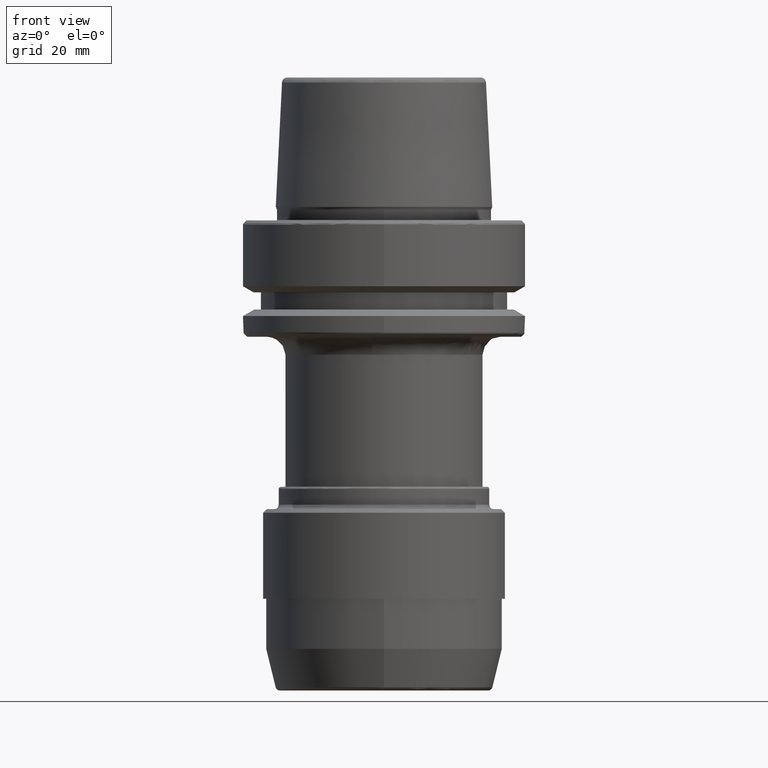
[diagram: clean part render]
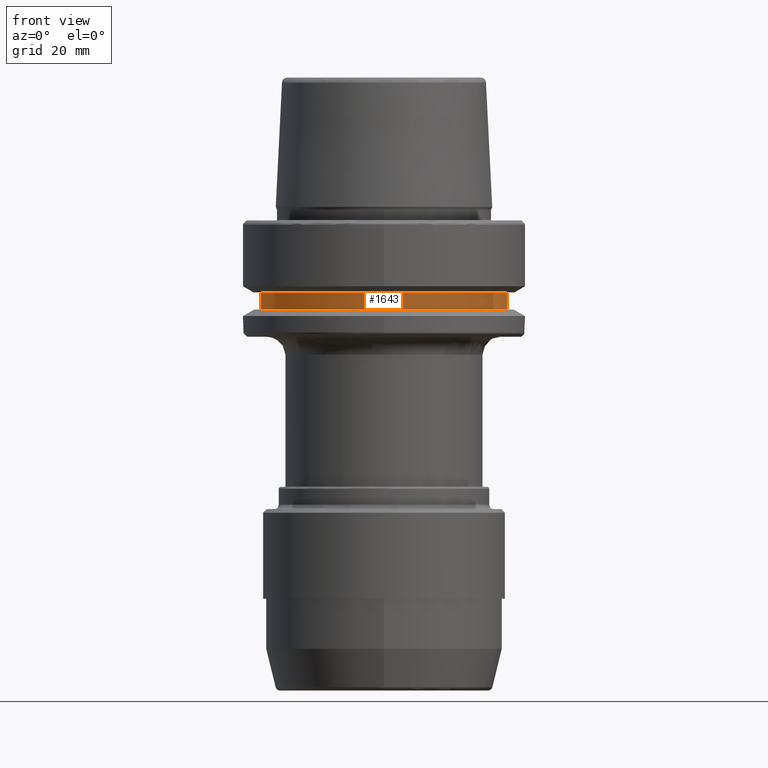
[diagram: same view with one face highlighted and labeled with its STEP entity id]
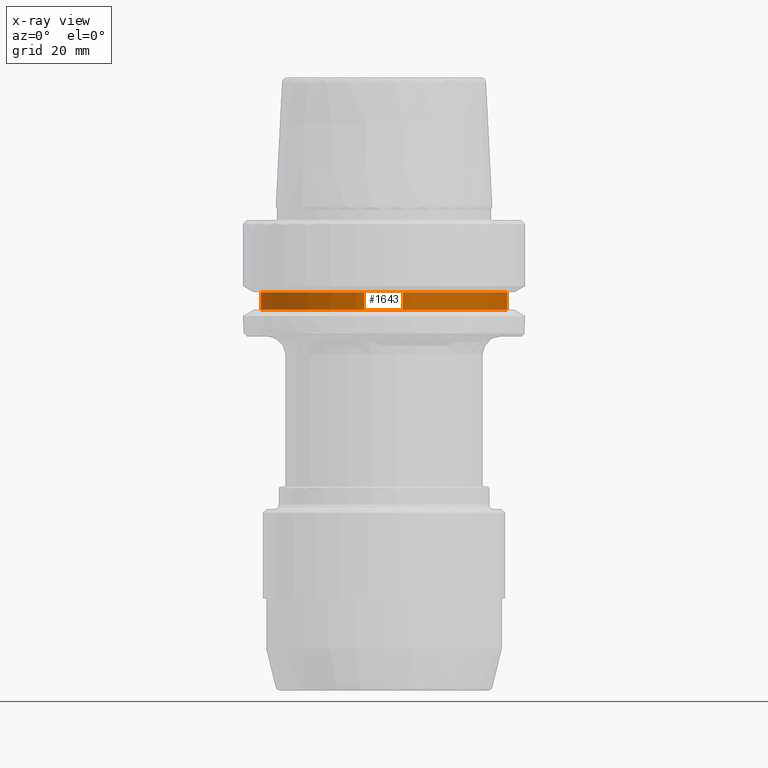
[diagram: x-ray of the same camera — body ghosted, the highlighted face saturated]
A machine part, front view. The second image highlights one B-rep face of the part: STEP entity #1643.
The next image is the same camera in x-ray: the body ghosted, the highlighted face saturated — about 0% of this face is hidden behind the body in this view.
In plain terms, the highlighted cylindrical surface (partial cylindrical patch) has radius 27.5 mm, axis along (0, -0, 1).
Its self-contained STEP definition (entity closure, byte-faithful):
#33 = AXIS2_PLACEMENT_3D ( 'NONE', #1154, #3148, #1430 ) ;
#96 = ORIENTED_EDGE ( 'NONE', *, *, #1653, .F. ) ;
#106 = FACE_OUTER_BOUND ( 'NONE', #3512, .T. ) ;
#128 = DIRECTION ( 'NONE',  ( 1.000000000000000000, 0.0000000000000000000, 0.0000000000000000000 ) ) ;
#162 = DIRECTION ( 'NONE',  ( 1.000000000000000000, 0.0000000000000000000, 0.0000000000000000000 ) ) ;
#299 = VERTEX_POINT ( 'NONE', #1321 ) ;
#314 = DIRECTION ( 'NONE',  ( 0.0000000000000000000, -0.0000000000000000000, 1.000000000000000000 ) ) ;
#364 = CIRCLE ( 'NONE', #925, 27.50000000000000000 ) ;
#451 = DIRECTION ( 'NONE',  ( 0.0000000000000000000, -0.0000000000000000000, 1.000000000000000000 ) ) ;
#768 = CYLINDRICAL_SURFACE ( 'NONE', #1128, 27.50000000000000000 ) ;
#925 = AXIS2_PLACEMENT_3D ( 'NONE', #3566, #1829, #128 ) ;
#982 = CARTESIAN_POINT ( 'NONE',  ( 27.50000000000000000, 0.0000000000000000000, -16.10000000000000100 ) ) ;
#1021 = CARTESIAN_POINT ( 'NONE',  ( 0.0000000000000000000, 0.0000000000000000000, -19.89999999999999900 ) ) ;
#1128 = AXIS2_PLACEMENT_3D ( 'NONE', #1021, #2703, #162 ) ;
#1154 = CARTESIAN_POINT ( 'NONE',  ( 0.0000000000000000000, 0.0000000000000000000, -19.90000000000000200 ) ) ;
#1261 = EDGE_CURVE ( 'NONE', #3592, #1591, #1564, .T. ) ;
#1277 = VERTEX_POINT ( 'NONE', #2290 ) ;
#1321 = CARTESIAN_POINT ( 'NONE',  ( -27.50000000000000000, 3.367778697655221300E-015, -19.90000000000000200 ) ) ;
#1430 = DIRECTION ( 'NONE',  ( 1.000000000000000000, 0.0000000000000000000, 0.0000000000000000000 ) ) ;
#1491 = ORIENTED_EDGE ( 'NONE', *, *, #1261, .T. ) ;
#1518 = LINE ( 'NONE', #3010, #3046 ) ;
#1564 = LINE ( 'NONE', #1719, #2226 ) ;
#1591 = VERTEX_POINT ( 'NONE', #982 ) ;
#1643 = ADVANCED_FACE ( 'NONE', ( #106 ), #768, .T. ) ;
#1653 = EDGE_CURVE ( 'NONE', #299, #1277, #1518, .T. ) ;
#1719 = CARTESIAN_POINT ( 'NONE',  ( 27.50000000000000000, 0.0000000000000000000, -19.89999999999999900 ) ) ;
#1787 = CARTESIAN_POINT ( 'NONE',  ( 27.50000000000000000, 0.0000000000000000000, -19.90000000000000200 ) ) ;
#1829 = DIRECTION ( 'NONE',  ( 0.0000000000000000000, -0.0000000000000000000, 1.000000000000000000 ) ) ;
#2085 = EDGE_CURVE ( 'NONE', #3592, #299, #2224, .T. ) ;
#2224 = CIRCLE ( 'NONE', #33, 27.50000000000000000 ) ;
#2226 = VECTOR ( 'NONE', #314, 1000.000000000000000 ) ;
#2290 = CARTESIAN_POINT ( 'NONE',  ( -27.50000000000000000, 3.367778697655221300E-015, -16.10000000000000100 ) ) ;
#2625 = ORIENTED_EDGE ( 'NONE', *, *, #2085, .F. ) ;
#2703 = DIRECTION ( 'NONE',  ( 0.0000000000000000000, -0.0000000000000000000, 1.000000000000000000 ) ) ;
#3010 = CARTESIAN_POINT ( 'NONE',  ( -27.50000000000000000, 3.367778697655221300E-015, -19.89999999999999900 ) ) ;
#3026 = ORIENTED_EDGE ( 'NONE', *, *, #3658, .F. ) ;
#3046 = VECTOR ( 'NONE', #451, 1000.000000000000000 ) ;
#3148 = DIRECTION ( 'NONE',  ( -0.0000000000000000000, 0.0000000000000000000, -1.000000000000000000 ) ) ;
#3512 = EDGE_LOOP ( 'NONE', ( #96, #2625, #1491, #3026 ) ) ;
#3566 = CARTESIAN_POINT ( 'NONE',  ( 0.0000000000000000000, 0.0000000000000000000, -16.10000000000000100 ) ) ;
#3592 = VERTEX_POINT ( 'NONE', #1787 ) ;
#3658 = EDGE_CURVE ( 'NONE', #1277, #1591, #364, .T. ) ;